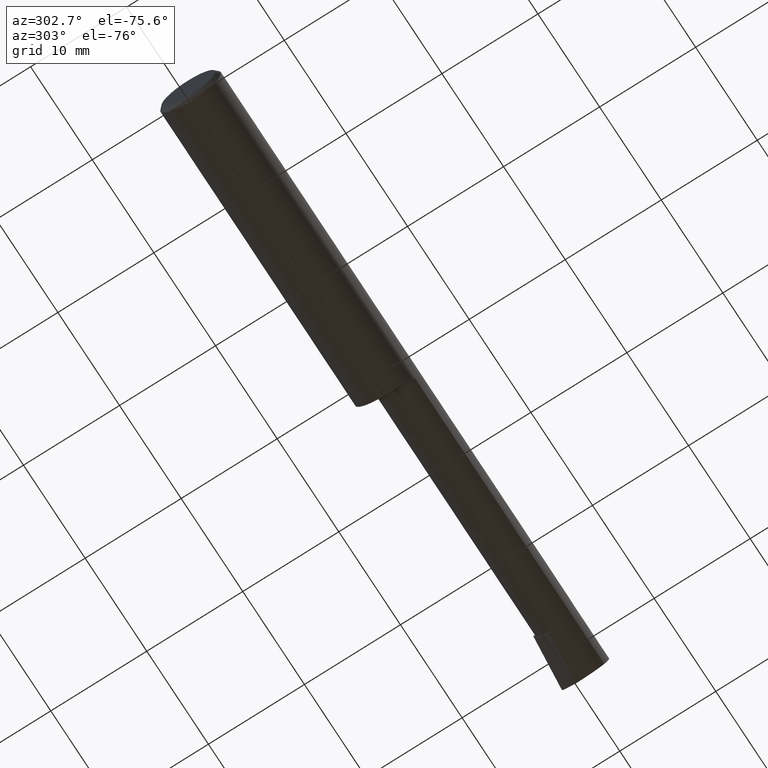
[diagram: clean part render]
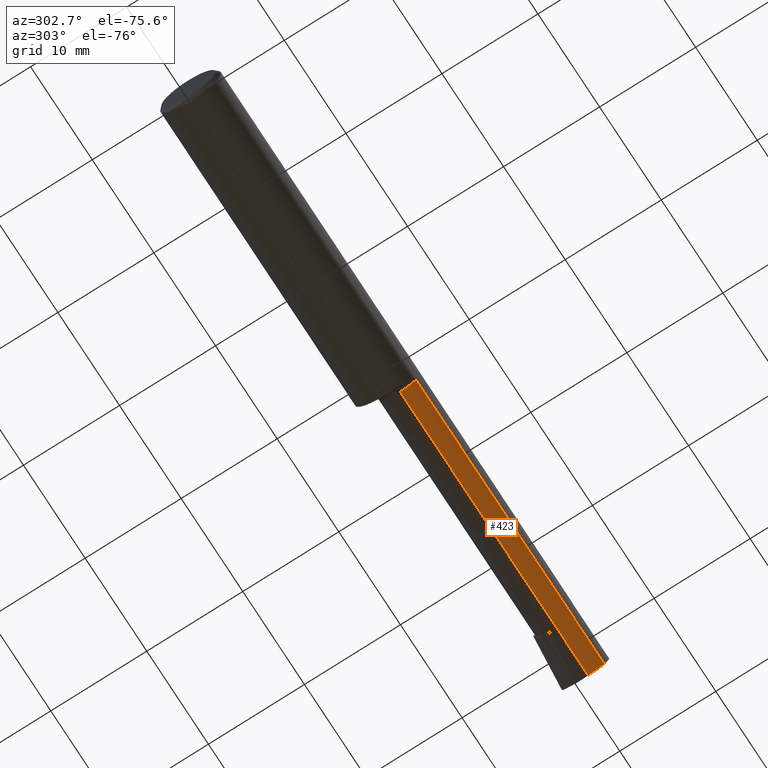
[diagram: same view with one face highlighted and labeled with its STEP entity id]
A machine part, auxiliary view. The second image highlights one B-rep face of the part: STEP entity #423.
In plain terms, the highlighted cylindrical surface (edge-blend (fillet) strip) has radius 2.2644 mm, axis along (-1, -0, -0).
Its self-contained STEP definition (entity closure, byte-faithful):
#10 = EDGE_CURVE ( 'NONE', #441, #703, #530, .T. ) ;
#19 = FACE_OUTER_BOUND ( 'NONE', #440, .T. ) ;
#56 = DIRECTION ( 'NONE',  ( -1.000000000000000000, -0.0000000000000000000, -0.0000000000000000000 ) ) ;
#80 = CARTESIAN_POINT ( 'NONE',  ( 1.285000000000000142, -0.04399999999999997663, -0.08914999999999986824 ) ) ;
#97 = LINE ( 'NONE', #405, #655 ) ;
#112 = ORIENTED_EDGE ( 'NONE', *, *, #483, .T. ) ;
#119 = CARTESIAN_POINT ( 'NONE',  ( 2.485982323393565174, -0.04399999999999999745, -0.08914999999999999314 ) ) ;
#123 = ORIENTED_EDGE ( 'NONE', *, *, #10, .F. ) ;
#161 = CARTESIAN_POINT ( 'NONE',  ( 0.0000000000000000000, -0.04399999999999998357, -0.08914999999999992375 ) ) ;
#171 = CARTESIAN_POINT ( 'NONE',  ( 2.487716879513912627, -0.1088159090909092686, -0.06120964326573853642 ) ) ;
#176 = DIRECTION ( 'NONE',  ( -1.000000000000000000, -0.0000000000000000000, -0.0000000000000000000 ) ) ;
#178 = CARTESIAN_POINT ( 'NONE',  ( 2.285000000000000142, -0.04399999999999999745, -0.08914999999999999314 ) ) ;
#179 = CARTESIAN_POINT ( 'NONE',  ( 1.285000000000000142, -0.1088159090909091714, -0.06120964326573855724 ) ) ;
#184 = EDGE_CURVE ( 'NONE', #424, #441, #239, .T. ) ;
#188 = CARTESIAN_POINT ( 'NONE',  ( 2.500000000000000000, -0.04399999999999999745, -0.08914999999999999314 ) ) ;
#197 = AXIS2_PLACEMENT_3D ( 'NONE', #611, #619, #275 ) ;
#207 =( BOUNDED_CURVE ( )  B_SPLINE_CURVE ( 3, ( #442, #723, #227, #727 ),
 .UNSPECIFIED., .F., .F. ) 
 B_SPLINE_CURVE_WITH_KNOTS ( ( 4, 4 ),
 ( 5.679229040429019548, 6.493234751459755927 ),
 .UNSPECIFIED. ) 
 CURVE ( )  GEOMETRIC_REPRESENTATION_ITEM ( )  RATIONAL_B_SPLINE_CURVE ( ( 1.000000000000000000, 0.9455409277260479195, 0.9455409277260479195, 1.000000000000000000 ) ) 
 REPRESENTATION_ITEM ( '' )  );
#227 = CARTESIAN_POINT ( 'NONE',  ( 2.485330758133041495, -0.06888227343086726628, -0.08914999999999992375 ) ) ;
#239 = LINE ( 'NONE', #188, #270 ) ;
#250 = DIRECTION ( 'NONE',  ( -1.000000000000000000, 5.691349986800549142E-18, -0.0000000000000000000 ) ) ;
#270 = VECTOR ( 'NONE', #250, 39.37007874015748143 ) ;
#274 = DIRECTION ( 'NONE',  ( -1.000000000000000000, -0.0000000000000000000, -0.0000000000000000000 ) ) ;
#275 = DIRECTION ( 'NONE',  ( 0.0000000000000000000, 0.0000000000000000000, 1.000000000000000000 ) ) ;
#362 = EDGE_CURVE ( 'NONE', #703, #522, #555, .T. ) ;
#381 = EDGE_CURVE ( 'NONE', #592, #424, #207, .T. ) ;
#391 = CARTESIAN_POINT ( 'NONE',  ( 0.0000000000000000000, -0.04399999999999999745, 0.0000000000000000000 ) ) ;
#405 = CARTESIAN_POINT ( 'NONE',  ( 1.785000000000000142, -0.1088159090909092686, -0.06120964326573853642 ) ) ;
#423 = ADVANCED_FACE ( 'NONE', ( #19 ), #644, .T. ) ;
#424 = VERTEX_POINT ( 'NONE', #119 ) ;
#440 = EDGE_LOOP ( 'NONE', ( #123, #610, #685, #112, #626 ) ) ;
#441 = VERTEX_POINT ( 'NONE', #178 ) ;
#442 = CARTESIAN_POINT ( 'NONE',  ( 2.487716879513912627, -0.1088159090909092686, -0.06120964326573853642 ) ) ;
#452 = AXIS2_PLACEMENT_3D ( 'NONE', #391, #56, #507 ) ;
#483 = EDGE_CURVE ( 'NONE', #592, #522, #97, .T. ) ;
#507 = DIRECTION ( 'NONE',  ( 0.0000000000000000000, 0.0000000000000000000, 1.000000000000000000 ) ) ;
#522 = VERTEX_POINT ( 'NONE', #179 ) ;
#530 = LINE ( 'NONE', #161, #633 ) ;
#555 = CIRCLE ( 'NONE', #197, 0.08914999999999986824 ) ;
#592 = VERTEX_POINT ( 'NONE', #171 ) ;
#610 = ORIENTED_EDGE ( 'NONE', *, *, #184, .F. ) ;
#611 = CARTESIAN_POINT ( 'NONE',  ( 1.285000000000000142, -0.04399999999999999745, 0.0000000000000000000 ) ) ;
#619 = DIRECTION ( 'NONE',  ( -1.000000000000000000, -0.0000000000000000000, -0.0000000000000000000 ) ) ;
#626 = ORIENTED_EDGE ( 'NONE', *, *, #362, .F. ) ;
#633 = VECTOR ( 'NONE', #274, 39.37007874015748143 ) ;
#644 = CYLINDRICAL_SURFACE ( 'NONE', #452, 0.08914999999999992375 ) ;
#655 = VECTOR ( 'NONE', #176, 39.37007874015748143 ) ;
#685 = ORIENTED_EDGE ( 'NONE', *, *, #381, .F. ) ;
#703 = VERTEX_POINT ( 'NONE', #80 ) ;
#723 = CARTESIAN_POINT ( 'NONE',  ( 2.485942244485980002, -0.09173194857106685418, -0.07930013314426062609 ) ) ;
#727 = CARTESIAN_POINT ( 'NONE',  ( 2.485982323393565174, -0.04399999999999999745, -0.08914999999999999314 ) ) ;